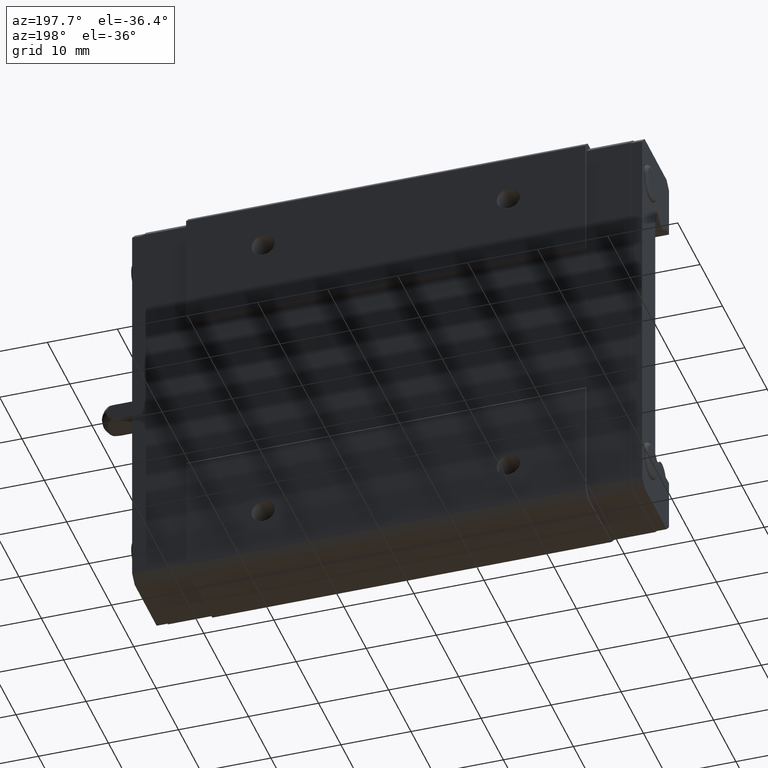
[diagram: clean part render]
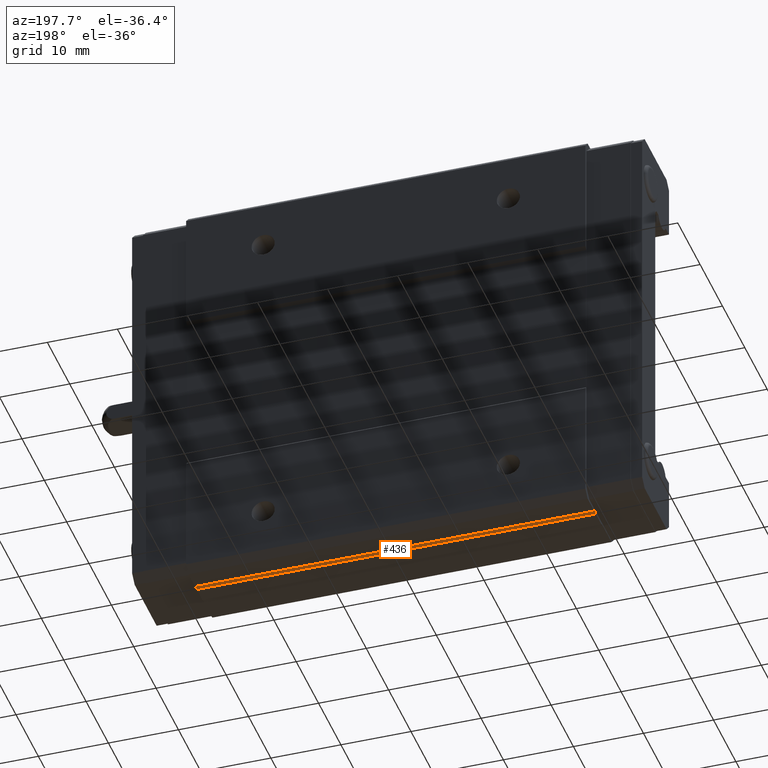
[diagram: same view with one face highlighted and labeled with its STEP entity id]
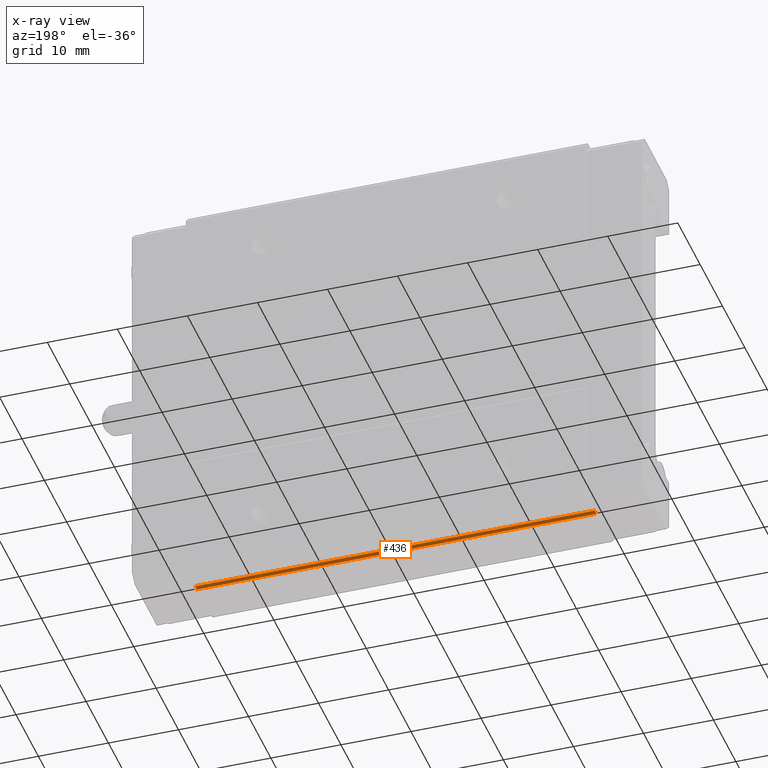
[diagram: x-ray of the same camera — body ghosted, the highlighted face saturated]
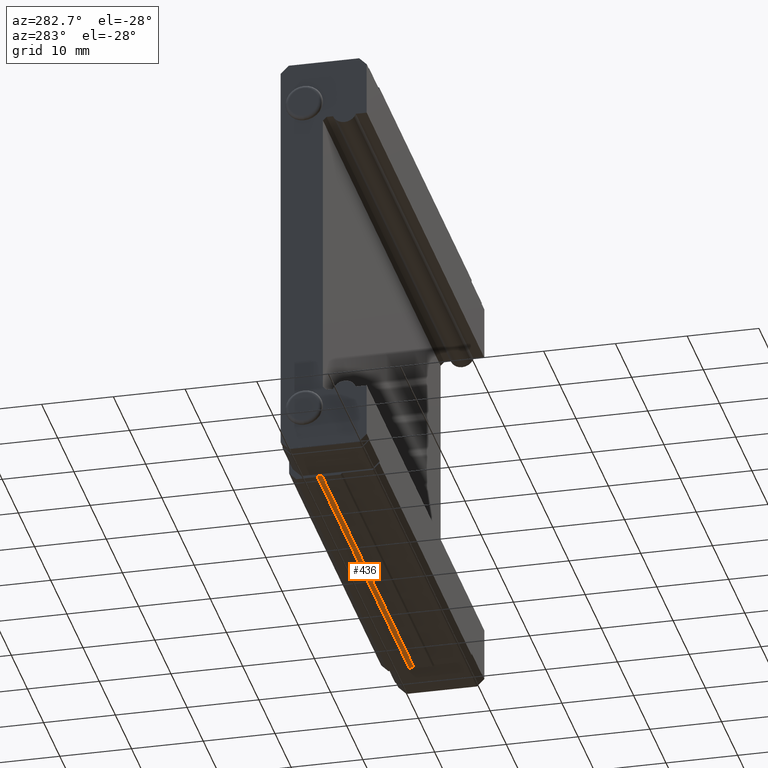
[diagram: same view with one face highlighted and labeled with its STEP entity id]
A machine part, auxiliary view. The second image highlights one B-rep face of the part: STEP entity #436.
The next image is the same camera in x-ray: the body ghosted, the highlighted face saturated — about 0% of this face is hidden behind the body in this view.
A second angle (auxiliary view) of the same face is appended — the face is thin or edge-on in the first view.
In plain terms, the highlighted cylindrical surface (edge-blend (fillet) strip) has radius 0.4 mm, axis along (1, 0, 0).
Its self-contained STEP definition (entity closure, byte-faithful):
#30 = EDGE_CURVE ( 'NONE', #3023, #2922, #954, .T. ) ;
#178 = EDGE_CURVE ( 'NONE', #3023, #595, #1147, .T. ) ;
#426 = EDGE_LOOP ( 'NONE', ( #481, #482, #461, #466 ) ) ;
#436 = ADVANCED_FACE ( 'NONE', ( #1498 ), #1496, .F. ) ;
#461 = ORIENTED_EDGE ( 'NONE', *, *, #2923, .T. ) ;
#466 = ORIENTED_EDGE ( 'NONE', *, *, #30, .F. ) ;
#481 = ORIENTED_EDGE ( 'NONE', *, *, #178, .T. ) ;
#482 = ORIENTED_EDGE ( 'NONE', *, *, #597, .T. ) ;
#594 = VERTEX_POINT ( 'NONE', #1787 ) ;
#595 = VERTEX_POINT ( 'NONE', #1786 ) ;
#597 = EDGE_CURVE ( 'NONE', #595, #594, #1783, .T. ) ;
#951 = DIRECTION ( 'NONE',  ( 1.000000000000000000, 0.0000000000000000000, 0.0000000000000000000 ) ) ;
#952 = VECTOR ( 'NONE', #951, 1000.000000000000000 ) ;
#953 = CARTESIAN_POINT ( 'NONE',  ( -36.90000000000000600, 7.953589838486221800, -29.99999999999999300 ) ) ;
#954 = LINE ( 'NONE', #953, #952 ) ;
#1143 = DIRECTION ( 'NONE',  ( 0.0000000000000000000, 0.0000000000000000000, 1.000000000000000000 ) ) ;
#1144 = DIRECTION ( 'NONE',  ( -1.000000000000000000, 0.0000000000000000000, 0.0000000000000000000 ) ) ;
#1145 = CARTESIAN_POINT ( 'NONE',  ( -28.50000000000000000, 8.299999999999998900, -30.19999999999999200 ) ) ;
#1146 = AXIS2_PLACEMENT_3D ( 'NONE', #1145, #1144, #1143 ) ;
#1147 = CIRCLE ( 'NONE', #1146, 0.4000000000000010200 ) ;
#1496 = CYLINDRICAL_SURFACE ( 'NONE', #1557, 0.4000000000000010200 ) ;
#1498 = FACE_OUTER_BOUND ( 'NONE', #426, .T. ) ;
#1554 = DIRECTION ( 'NONE',  ( 0.0000000000000000000, 0.0000000000000000000, -1.000000000000000000 ) ) ;
#1555 = DIRECTION ( 'NONE',  ( 1.000000000000000000, 0.0000000000000000000, 0.0000000000000000000 ) ) ;
#1556 = CARTESIAN_POINT ( 'NONE',  ( -36.90000000000000600, 8.299999999999998900, -30.19999999999999200 ) ) ;
#1557 = AXIS2_PLACEMENT_3D ( 'NONE', #1556, #1555, #1554 ) ;
#1780 = DIRECTION ( 'NONE',  ( 1.000000000000000000, 0.0000000000000000000, 0.0000000000000000000 ) ) ;
#1781 = VECTOR ( 'NONE', #1780, 1000.000000000000000 ) ;
#1782 = CARTESIAN_POINT ( 'NONE',  ( -36.90000000000000600, 8.646410161513774300, -29.99999999999999300 ) ) ;
#1783 = LINE ( 'NONE', #1782, #1781 ) ;
#1786 = CARTESIAN_POINT ( 'NONE',  ( -28.50000000000000000, 8.646410161513774300, -29.99999999999999300 ) ) ;
#1787 = CARTESIAN_POINT ( 'NONE',  ( 28.50000000000000000, 8.646410161513774300, -29.99999999999999300 ) ) ;
#2500 = DIRECTION ( 'NONE',  ( 0.0000000000000000000, 0.0000000000000000000, -1.000000000000000000 ) ) ;
#2501 = DIRECTION ( 'NONE',  ( 1.000000000000000000, 0.0000000000000000000, 0.0000000000000000000 ) ) ;
#2502 = CARTESIAN_POINT ( 'NONE',  ( 28.50000000000000000, 8.299999999999998900, -30.19999999999999200 ) ) ;
#2503 = AXIS2_PLACEMENT_3D ( 'NONE', #2502, #2501, #2500 ) ;
#2504 = CIRCLE ( 'NONE', #2503, 0.4000000000000010200 ) ;
#2505 = CARTESIAN_POINT ( 'NONE',  ( 28.50000000000000000, 7.953589838486221800, -29.99999999999999300 ) ) ;
#2668 = CARTESIAN_POINT ( 'NONE',  ( -28.50000000000000000, 7.953589838486221800, -29.99999999999998900 ) ) ;
#2922 = VERTEX_POINT ( 'NONE', #2505 ) ;
#2923 = EDGE_CURVE ( 'NONE', #594, #2922, #2504, .T. ) ;
#3023 = VERTEX_POINT ( 'NONE', #2668 ) ;